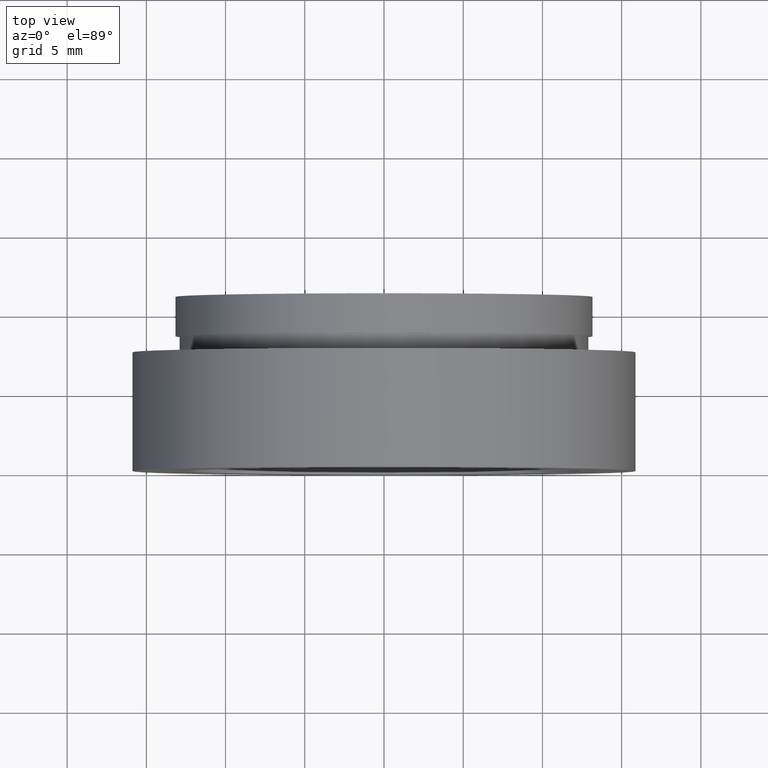
[diagram: clean part render]
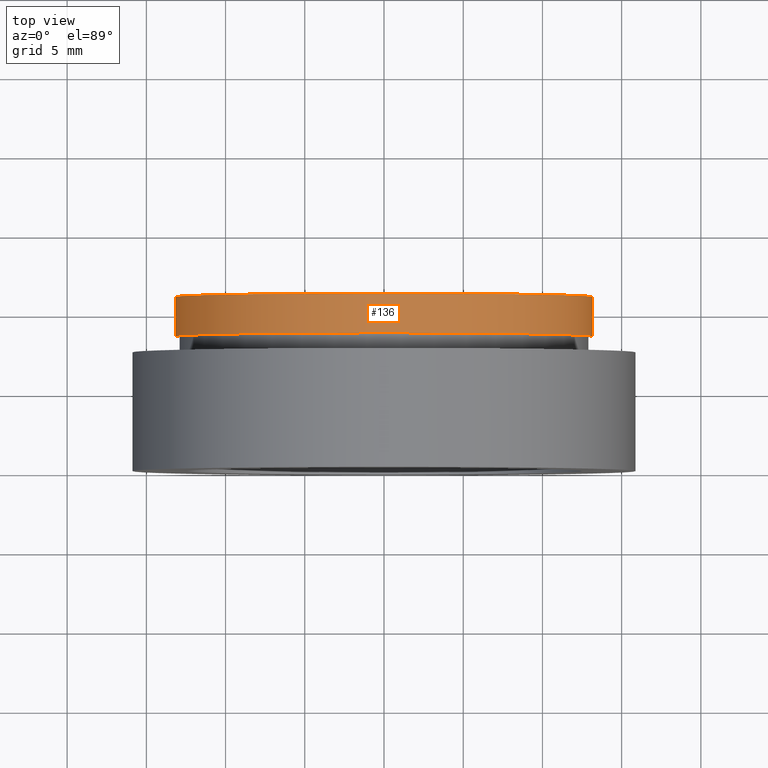
[diagram: same view with one face highlighted and labeled with its STEP entity id]
A machine part, top view. The second image highlights one B-rep face of the part: STEP entity #136.
In plain terms, the highlighted cylindrical surface (partial cylindrical patch) has radius 13.16 mm, axis along (-0, 1, -0).
Its self-contained STEP definition (entity closure, byte-faithful):
#2 = LINE ( 'NONE', #86, #373 ) ;
#19 = CARTESIAN_POINT ( 'NONE',  ( 0.0000000000000000000, 16.88601823708207700, 0.0000000000000000000 ) ) ;
#28 = VECTOR ( 'NONE', #461, 1000.000000000000000 ) ;
#45 = ORIENTED_EDGE ( 'NONE', *, *, #144, .T. ) ;
#75 = VERTEX_POINT ( 'NONE', #306 ) ;
#79 = AXIS2_PLACEMENT_3D ( 'NONE', #19, #80, #164 ) ;
#80 = DIRECTION ( 'NONE',  ( -1.224646799147351000E-016, 1.000000000000000000, -0.0000000000000000000 ) ) ;
#86 = CARTESIAN_POINT ( 'NONE',  ( 13.15999999999999800, 16.88601823708207700, 1.611635187677916700E-015 ) ) ;
#100 = ORIENTED_EDGE ( 'NONE', *, *, #363, .F. ) ;
#128 = CARTESIAN_POINT ( 'NONE',  ( 13.16000000000000200, 10.99999999999999800, 1.611635187677917100E-015 ) ) ;
#133 = DIRECTION ( 'NONE',  ( -1.000000000000000000, -1.318178933113075500E-016, 0.0000000000000000000 ) ) ;
#135 = EDGE_LOOP ( 'NONE', ( #370, #45, #600, #100 ) ) ;
#136 = ADVANCED_FACE ( 'NONE', ( #503 ), #486, .T. ) ;
#139 = CARTESIAN_POINT ( 'NONE',  ( -13.15999999999999800, 16.88601823708207700, 0.0000000000000000000 ) ) ;
#144 = EDGE_CURVE ( 'NONE', #75, #320, #2, .T. ) ;
#164 = DIRECTION ( 'NONE',  ( -1.000000000000000000, 0.0000000000000000000, 0.0000000000000000000 ) ) ;
#185 = DIRECTION ( 'NONE',  ( -1.224646799147351000E-016, 1.000000000000000000, -0.0000000000000000000 ) ) ;
#188 = VERTEX_POINT ( 'NONE', #558 ) ;
#279 = CARTESIAN_POINT ( 'NONE',  ( 1.026991039163387700E-015, 8.499999999999998200, 0.0000000000000000000 ) ) ;
#296 = VERTEX_POINT ( 'NONE', #596 ) ;
#306 = CARTESIAN_POINT ( 'NONE',  ( 13.16000000000000200, 8.500000000000000000, 1.611635187677917100E-015 ) ) ;
#320 = VERTEX_POINT ( 'NONE', #128 ) ;
#355 = EDGE_CURVE ( 'NONE', #296, #320, #402, .T. ) ;
#363 = EDGE_CURVE ( 'NONE', #188, #296, #583, .T. ) ;
#370 = ORIENTED_EDGE ( 'NONE', *, *, #372, .T. ) ;
#372 = EDGE_CURVE ( 'NONE', #188, #75, #543, .T. ) ;
#373 = VECTOR ( 'NONE', #556, 1000.000000000000000 ) ;
#402 = CIRCLE ( 'NONE', #483, 13.16000000000000000 ) ;
#461 = DIRECTION ( 'NONE',  ( -1.224646799147351000E-016, 1.000000000000000000, -0.0000000000000000000 ) ) ;
#483 = AXIS2_PLACEMENT_3D ( 'NONE', #518, #185, #509 ) ;
#486 = CYLINDRICAL_SURFACE ( 'NONE', #79, 13.15999999999999800 ) ;
#503 = FACE_OUTER_BOUND ( 'NONE', #135, .T. ) ;
#509 = DIRECTION ( 'NONE',  ( -1.000000000000000000, -1.318178933113075200E-016, 0.0000000000000000000 ) ) ;
#518 = CARTESIAN_POINT ( 'NONE',  ( 7.208293393765502500E-016, 10.99999999999999600, 0.0000000000000000000 ) ) ;
#542 = AXIS2_PLACEMENT_3D ( 'NONE', #279, #605, #133 ) ;
#543 = CIRCLE ( 'NONE', #542, 13.15999999999999800 ) ;
#556 = DIRECTION ( 'NONE',  ( -1.224646799147351000E-016, 1.000000000000000000, -0.0000000000000000000 ) ) ;
#558 = CARTESIAN_POINT ( 'NONE',  ( -13.15999999999999700, 8.499999999999996400, 0.0000000000000000000 ) ) ;
#583 = LINE ( 'NONE', #139, #28 ) ;
#596 = CARTESIAN_POINT ( 'NONE',  ( -13.16000000000000000, 10.99999999999999500, 0.0000000000000000000 ) ) ;
#600 = ORIENTED_EDGE ( 'NONE', *, *, #355, .F. ) ;
#605 = DIRECTION ( 'NONE',  ( -1.224646799147351000E-016, 1.000000000000000000, -0.0000000000000000000 ) ) ;